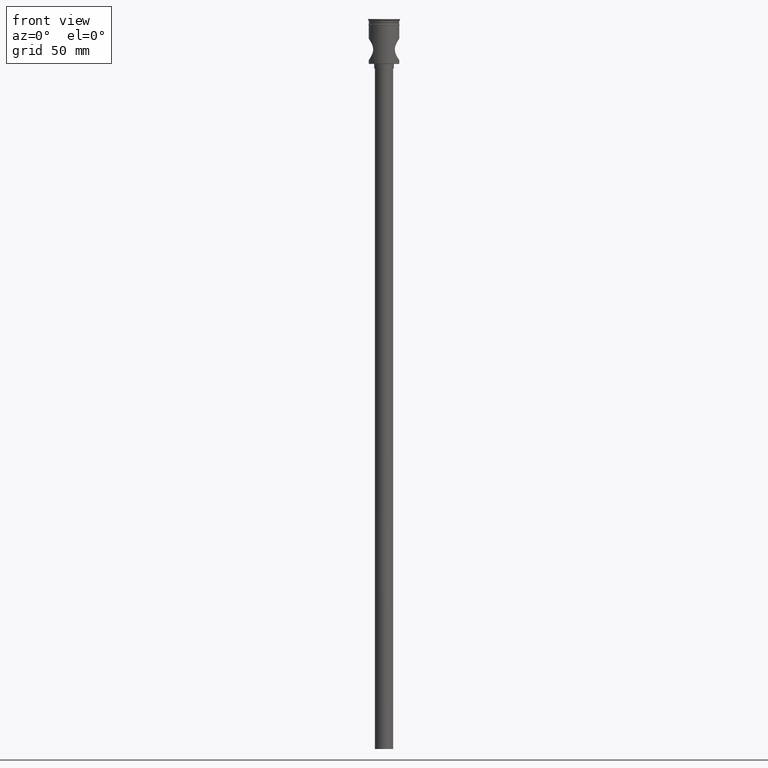
[diagram: clean part render]
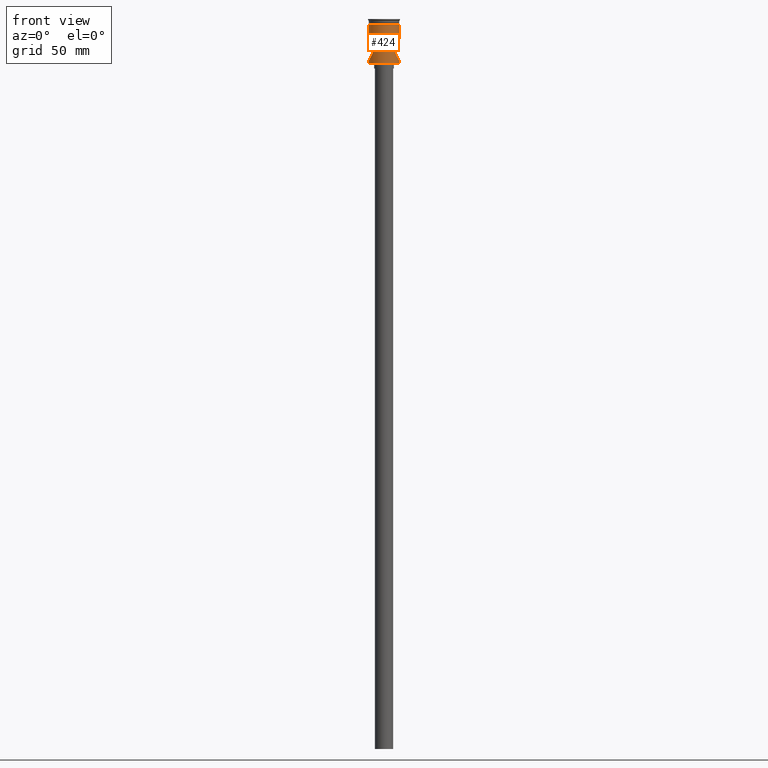
[diagram: same view with one face highlighted and labeled with its STEP entity id]
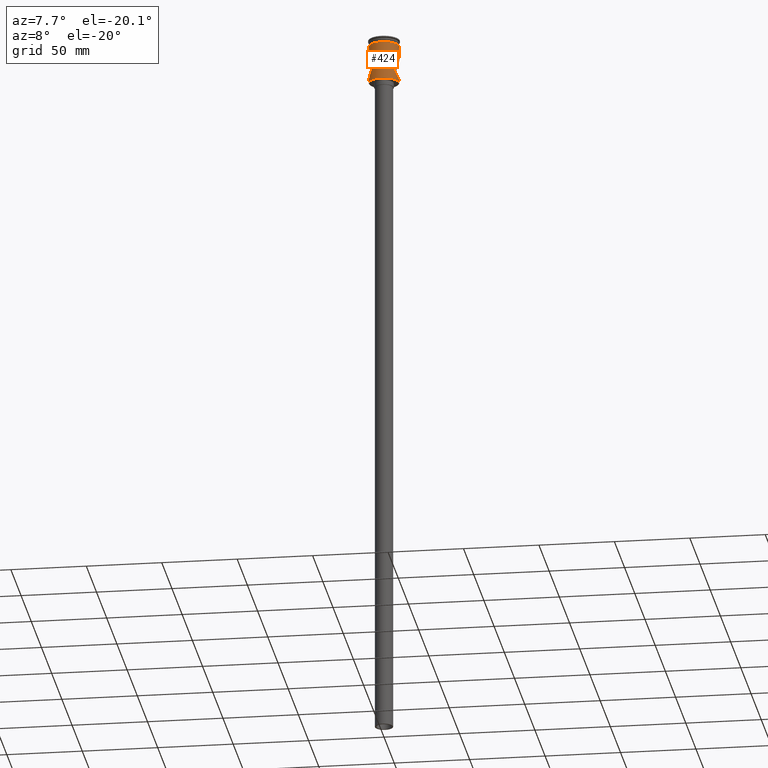
[diagram: same view with one face highlighted and labeled with its STEP entity id]
A machine part, front view. The second image highlights one B-rep face of the part: STEP entity #424.
A second angle (auxiliary view) of the same face is appended — the face is thin or edge-on in the first view.
In plain terms, the highlighted cylindrical surface (edge-blend (fillet) strip) has radius 10 mm, axis along (-0, -0, 1).
Its self-contained STEP definition (entity closure, byte-faithful):
#2 = CARTESIAN_POINT ( 'NONE',  ( -9.965446655919851793, -0.9519641332654177335, -26.95088558220736275 ) ) ;
#10 = CIRCLE ( 'NONE', #1013, 9.999999999999994671 ) ;
#26 = CARTESIAN_POINT ( 'NONE',  ( 7.569330506494650557, -6.535933251526300225, -17.48356472559869701 ) ) ;
#32 = CARTESIAN_POINT ( 'NONE',  ( 9.999999999999996447, -0.4807969081117849930, -27.00000000000000711 ) ) ;
#41 = CARTESIAN_POINT ( 'NONE',  ( 7.500597748671954612, -6.614342876288897166, -17.69704926583546722 ) ) ;
#46 = DIRECTION ( 'NONE',  ( -0.000000000000000000, -0.000000000000000000, 1.000000000000000000 ) ) ;
#57 = CARTESIAN_POINT ( 'NONE',  ( 7.191763660842745765, -6.949507115151161152, -20.96152780032075569 ) ) ;
#60 = CARTESIAN_POINT ( 'NONE',  ( 0.000000000000000000, 0.000000000000000000, -3.999999999999996447 ) ) ;
#65 = CARTESIAN_POINT ( 'NONE',  ( 9.351609315107900500, -3.564938189428362492, -26.04074502495871357 ) ) ;
#80 = CARTESIAN_POINT ( 'NONE',  ( -7.720495804876727597, -6.356685689900114511, -17.05985571267803991 ) ) ;
#88 = CARTESIAN_POINT ( 'NONE',  ( 9.035512705743391493, -4.303590503429355785, -25.53881697926559369 ) ) ;
#90 = CARTESIAN_POINT ( 'NONE',  ( -7.964400624432382614, -6.054727537725130837, -23.54044438658495153 ) ) ;
#93 = CARTESIAN_POINT ( 'NONE',  ( 9.999999999999994671, 0.000000000000000000, -27.00000000000001066 ) ) ;
#103 = CARTESIAN_POINT ( 'NONE',  ( -7.141483849871206324, -6.999943458932624374, -20.23958506209359243 ) ) ;
#138 = CARTESIAN_POINT ( 'NONE',  ( 9.494221684495640190, -3.170672659151725803, -26.25765240908376441 ) ) ;
#141 = CARTESIAN_POINT ( 'NONE',  ( 9.736384942666981956, -2.323699784143519409, -13.38067151163704516 ) ) ;
#161 = CARTESIAN_POINT ( 'NONE',  ( 7.326263957022343121, -6.806624336356016158, -21.65073055260621260 ) ) ;
#165 = ORIENTED_EDGE ( 'NONE', *, *, #403, .T. ) ;
#169 = CARTESIAN_POINT ( 'NONE',  ( 9.832878540591767802, -1.879722866531851500, -13.24054240779418912 ) ) ;
#182 = DIRECTION ( 'NONE',  ( -0.000000000000000000, -0.000000000000000000, 1.000000000000000000 ) ) ;
#201 = EDGE_LOOP ( 'NONE', ( #466, #1478, #165, #1352, #775, #1147, #634, #1414 ) ) ;
#213 = CARTESIAN_POINT ( 'NONE',  ( -9.267396788860443380, -3.762388530127550812, -14.09286872329777296 ) ) ;
#219 = CARTESIAN_POINT ( 'NONE',  ( -9.957729828106902659, -0.9487746701410776362, -13.06049825370512885 ) ) ;
#222 = CARTESIAN_POINT ( 'NONE',  ( -10.00000000000000000, 1.224646799147353256E-15, -3.999999999999996447 ) ) ;
#227 = CARTESIAN_POINT ( 'NONE',  ( -7.379165411094855465, -6.749558967525724817, -21.87002777218120286 ) ) ;
#228 = VECTOR ( 'NONE', #182, 1000.000000000000000 ) ;
#236 = CARTESIAN_POINT ( 'NONE',  ( -9.493823586986472662, -3.171854784083766532, -26.25704949909892605 ) ) ;
#241 = CARTESIAN_POINT ( 'NONE',  ( -9.999999999999994671, 1.224646799147352665E-15, 0.000000000000000000 ) ) ;
#256 = CARTESIAN_POINT ( 'NONE',  ( 9.028965068475372391, -4.317457269925927044, -14.47181101200376219 ) ) ;
#270 = CARTESIAN_POINT ( 'NONE',  ( 7.189382404875344967, -6.951946978929631982, -19.05590796920065344 ) ) ;
#297 = CARTESIAN_POINT ( 'NONE',  ( 9.999999999999996447, -0.2368473339933005184, -13.00000000000000178 ) ) ;
#309 = CARTESIAN_POINT ( 'NONE',  ( -7.325106434378655607, -6.807865243658027588, -21.64544578927128882 ) ) ;
#327 = CARTESIAN_POINT ( 'NONE',  ( -7.573222039985393117, -6.531435267832767622, -22.52812481744789608 ) ) ;
#329 = CARTESIAN_POINT ( 'NONE',  ( 9.999999999999994671, -5.133226810943367768E-18, -13.00000000000000355 ) ) ;
#341 = CARTESIAN_POINT ( 'NONE',  ( -7.967226261725709691, -6.044961550507585990, -16.46329765270407464 ) ) ;
#344 = VECTOR ( 'NONE', #1453, 1000.000000000000000 ) ;
#353 = CARTESIAN_POINT ( 'NONE',  ( -8.856372138511659386, -4.657577678256725306, -25.24421500772974625 ) ) ;
#358 = EDGE_CURVE ( 'NONE', #464, #1266, #1117, .T. ) ;
#364 = EDGE_CURVE ( 'NONE', #1179, #1266, #414, .T. ) ;
#366 = CARTESIAN_POINT ( 'NONE',  ( -9.999999999999998224, -0.4814323775651352944, -27.00000000000000711 ) ) ;
#379 = CARTESIAN_POINT ( 'NONE',  ( 7.796802139286404199, -6.263237125868980293, -16.86600156342441181 ) ) ;
#384 = VERTEX_POINT ( 'NONE', #1243 ) ;
#386 = CARTESIAN_POINT ( 'NONE',  ( 7.322655419112947150, -6.810500286563441641, -18.36528137380276249 ) ) ;
#389 = DIRECTION ( 'NONE',  ( -0.000000000000000000, -0.000000000000000000, 1.000000000000000000 ) ) ;
#398 = CARTESIAN_POINT ( 'NONE',  ( 0.000000000000000000, 0.000000000000000000, 0.000000000000000000 ) ) ;
#403 = EDGE_CURVE ( 'NONE', #678, #726, #627, .T. ) ;
#414 = CIRCLE ( 'NONE', #637, 9.999999999999998224 ) ;
#424 = ADVANCED_FACE ( 'NONE', ( #645 ), #1092, .T. ) ;
#429 = CARTESIAN_POINT ( 'NONE',  ( -9.832512437962641627, -1.881659858244549621, -13.24107387809922720 ) ) ;
#434 = CARTESIAN_POINT ( 'NONE',  ( 9.999999999999994671, 0.000000000000000000, -29.29999999999994387 ) ) ;
#439 = CARTESIAN_POINT ( 'NONE',  ( -7.236111701560243858, -6.902383710959965057, -21.18811620976742915 ) ) ;
#458 = CARTESIAN_POINT ( 'NONE',  ( -9.029975738911995009, -4.315133941133940887, -14.47019995321800501 ) ) ;
#464 = VERTEX_POINT ( 'NONE', #329 ) ;
#465 = CARTESIAN_POINT ( 'NONE',  ( -8.053311715077983379, -5.930176009131116643, -16.27420902905398847 ) ) ;
#466 = ORIENTED_EDGE ( 'NONE', *, *, #1343, .F. ) ;
#484 = CARTESIAN_POINT ( 'NONE',  ( 9.965325511264428116, -0.9525671816038108197, -26.95070955909274346 ) ) ;
#495 = CARTESIAN_POINT ( 'NONE',  ( 9.999999999999994671, 0.000000000000000000, -27.00000000000001066 ) ) ;
#502 = CARTESIAN_POINT ( 'NONE',  ( 7.377383315084116155, -6.751497144694275754, -18.13709901651008494 ) ) ;
#526 = CARTESIAN_POINT ( 'NONE',  ( 8.056358060451358938, -5.926078000082590336, -23.73242365119358865 ) ) ;
#533 = VECTOR ( 'NONE', #1109, 1000.000000000000000 ) ;
#545 = CARTESIAN_POINT ( 'NONE',  ( -7.199668910925415055, -6.940164191266632976, -19.05657392165621999 ) ) ;
#598 = CARTESIAN_POINT ( 'NONE',  ( 9.492393824703038163, -3.176669941205827907, -13.74509325342724075 ) ) ;
#606 = CARTESIAN_POINT ( 'NONE',  ( 9.932287513067294071, -1.185065133237713564, -13.09699146176596152 ) ) ;
#620 = DIRECTION ( 'NONE',  ( -0.000000000000000000, -0.000000000000000000, 1.000000000000000000 ) ) ;
#625 = CARTESIAN_POINT ( 'NONE',  ( 7.381411116935109540, -6.747102913955163039, -21.87877048370861033 ) ) ;
#627 = LINE ( 'NONE', #1105, #228 ) ;
#633 = CARTESIAN_POINT ( 'NONE',  ( 7.802583678074496376, -6.256037095215745580, -23.14831442975813758 ) ) ;
#634 = ORIENTED_EDGE ( 'NONE', *, *, #1060, .F. ) ;
#637 = AXIS2_PLACEMENT_3D ( 'NONE', #60, #620, #996 ) ;
#642 = CARTESIAN_POINT ( 'NONE',  ( -9.999999999999994671, 1.224646799147352665E-15, 0.000000000000000000 ) ) ;
#644 = VERTEX_POINT ( 'NONE', #1285 ) ;
#645 = FACE_OUTER_BOUND ( 'NONE', #201, .T. ) ;
#653 = CARTESIAN_POINT ( 'NONE',  ( 9.991596185262174856, -0.4736682493084634071, -13.01198930438257939 ) ) ;
#678 = VERTEX_POINT ( 'NONE', #434 ) ;
#680 = CARTESIAN_POINT ( 'NONE',  ( -7.153700441637877994, -6.987541224765999814, -20.48080140017840378 ) ) ;
#687 = CARTESIAN_POINT ( 'NONE',  ( -7.503273641266416050, -6.611317046147628496, -22.31171733569519944 ) ) ;
#708 = CARTESIAN_POINT ( 'NONE',  ( -9.349377247001186220, -3.571280898155816619, -26.03738208151085942 ) ) ;
#726 = VERTEX_POINT ( 'NONE', #93 ) ;
#730 = LINE ( 'NONE', #642, #533 ) ;
#738 = CARTESIAN_POINT ( 'NONE',  ( 7.717429328536873356, -6.360383034377455225, -17.06803860621226221 ) ) ;
#748 = CARTESIAN_POINT ( 'NONE',  ( 7.140877080678153632, -7.000562488098498903, -19.52635574343557678 ) ) ;
#750 = CARTESIAN_POINT ( 'NONE',  ( 9.999999999999994671, 0.000000000000000000, 0.000000000000000000 ) ) ;
#764 = VECTOR ( 'NONE', #389, 1000.000000000000000 ) ;
#775 = ORIENTED_EDGE ( 'NONE', *, *, #358, .T. ) ;
#781 = CARTESIAN_POINT ( 'NONE',  ( 9.957864273581442660, -0.9472565907286202291, -13.06030547907275619 ) ) ;
#802 = CARTESIAN_POINT ( 'NONE',  ( -7.495754172928653425, -6.623269820279322317, -17.68917710553389711 ) ) ;
#813 = CARTESIAN_POINT ( 'NONE',  ( -9.834047061028449832, -1.872933838790286742, -26.76115115372198616 ) ) ;
#820 = CARTESIAN_POINT ( 'NONE',  ( -9.553141715981869453, -2.964211287661886907, -13.65436461758241826 ) ) ;
#848 = B_SPLINE_CURVE_WITH_KNOTS ( 'NONE', 3,
 ( #1388, #297, #653, #781, #606, #169, #141, #598, #1205, #256, #974, #857, #1095, #1454, #1080, #379, #738, #26, #41, #502, #386, #270, #748, #1222, #57, #161, #625, #1104, #985, #1229, #633, #896, #526, #1121, #1487, #1263, #88, #65, #138, #1342, #1325, #1077, #947, #484, #32, #495 ),
 .UNSPECIFIED., .F., .F.,
 ( 4, 2, 2, 2, 2, 2, 2, 2, 2, 2, 2, 2, 2, 2, 2, 2, 2, 2, 2, 2, 2, 2, 4 ),
 ( 0.02273717132267115415, 0.02344677004960173464, 0.02415636877653231512, 0.02557556623039347263, 0.02699476368425463360, 0.02841396113811579111, 0.02983315859197695208, 0.03054275731890752910, 0.03125235604583810611, 0.03196195477276868313, 0.03267155349969926015, 0.03409075095356042112, 0.03550994840742158210, 0.03621954713435215911, 0.03692914586128273613, 0.03763874458821332009, 0.03834834331514389710, 0.03976754076900505808, 0.04118673822286621211, 0.04260593567672736615, 0.04331553440365794316, 0.04402513313058852018, 0.04544433058444967422 ),
 .UNSPECIFIED. ) ;
#857 = CARTESIAN_POINT ( 'NONE',  ( 8.497179343882919511, -5.284524261307589121, -15.38819392766633065 ) ) ;
#896 = CARTESIAN_POINT ( 'NONE',  ( 7.969012120586810966, -6.042611853496006269, -23.54072391938827025 ) ) ;
#897 = CARTESIAN_POINT ( 'NONE',  ( -9.999999999999994671, 1.229780025839397734E-15, -13.00000000000000355 ) ) ;
#905 = CARTESIAN_POINT ( 'NONE',  ( -9.999999999999992895, -0.2371603752032593604, -12.99999999999999822 ) ) ;
#907 = LINE ( 'NONE', #241, #344 ) ;
#925 = CARTESIAN_POINT ( 'NONE',  ( -9.999999999999994671, 1.229780025839397734E-15, -13.00000000000000355 ) ) ;
#934 = CARTESIAN_POINT ( 'NONE',  ( -7.234464554488559962, -6.904114004842420549, -18.82145945963318567 ) ) ;
#947 = CARTESIAN_POINT ( 'NONE',  ( 9.867116120145132285, -1.641278058953922203, -26.80890176429205596 ) ) ;
#969 = DIRECTION ( 'NONE',  ( -0.000000000000000000, -0.000000000000000000, 1.000000000000000000 ) ) ;
#974 = CARTESIAN_POINT ( 'NONE',  ( 8.853430568094129427, -4.663155653245506294, -14.76073180007296415 ) ) ;
#979 = EDGE_CURVE ( 'NONE', #384, #678, #10, .T. ) ;
#980 = DIRECTION ( 'NONE',  ( -1.000000000000000000, 0.000000000000000000, 0.000000000000000000 ) ) ;
#985 = CARTESIAN_POINT ( 'NONE',  ( 7.574535355013245486, -6.529908853628298537, -22.53201108648861961 ) ) ;
#996 = DIRECTION ( 'NONE',  ( 1.000000000000000000, 0.000000000000000000, 0.000000000000000000 ) ) ;
#1003 = B_SPLINE_CURVE_WITH_KNOTS ( 'NONE', 3,
 ( #1167, #366, #2, #813, #1417, #236, #708, #1289, #353, #1166, #1406, #90, #1035, #327, #687, #227, #309, #439, #1504, #680, #103, #1303, #1019, #545, #934, #1394, #802, #80, #1422, #341, #465, #1286, #1045, #1027, #458, #213, #1495, #1527, #820, #1158, #429, #1514, #219, #1164, #905, #925 ),
 .UNSPECIFIED., .F., .F.,
 ( 4, 2, 2, 2, 2, 2, 2, 2, 2, 2, 2, 2, 2, 2, 2, 2, 2, 2, 2, 2, 2, 2, 4 ),
 ( 0.000000000000000000, 0.001421073207666954290, 0.002842146415333908580, 0.004263219623000863087, 0.005684292830667816293, 0.007105366038334770366, 0.008526439246001722705, 0.009236975849835196706, 0.009947512453668670707, 0.01065804905750214297, 0.01136858566133561697, 0.01207912226516908924, 0.01278965886900256151, 0.01421073207666950777, 0.01492126868050297657, 0.01563180528433644884, 0.01705287849200338296, 0.01847395169967032055, 0.01918448830350378762, 0.01989502490733725468, 0.02131609811500418880, 0.02202663471883765586, 0.02273717132267112292 ),
 .UNSPECIFIED. ) ;
#1013 = AXIS2_PLACEMENT_3D ( 'NONE', #1118, #46, #980 ) ;
#1019 = CARTESIAN_POINT ( 'NONE',  ( -7.153235015771535643, -6.988014041043822289, -19.52714534028609350 ) ) ;
#1027 = CARTESIAN_POINT ( 'NONE',  ( -8.857763224790602408, -4.655166966848104160, -14.75332674821394185 ) ) ;
#1035 = CARTESIAN_POINT ( 'NONE',  ( -7.796463043157197959, -6.266459839169562507, -23.15209899686185580 ) ) ;
#1045 = CARTESIAN_POINT ( 'NONE',  ( -8.498707828545159160, -5.282283036785493380, -15.38527946463392659 ) ) ;
#1060 = EDGE_CURVE ( 'NONE', #1209, #1179, #907, .T. ) ;
#1077 = CARTESIAN_POINT ( 'NONE',  ( 9.826638545464751573, -1.868062541291061418, -26.75021854738501403 ) ) ;
#1080 = CARTESIAN_POINT ( 'NONE',  ( 7.963207023572480558, -6.050255927956311730, -16.47232531239752618 ) ) ;
#1092 = CYLINDRICAL_SURFACE ( 'NONE', #1140, 9.999999999999994671 ) ;
#1095 = CARTESIAN_POINT ( 'NONE',  ( 8.315544161946235135, -5.562748588078726186, -15.72768175892419151 ) ) ;
#1104 = CARTESIAN_POINT ( 'NONE',  ( 7.505468983612138878, -6.608824641700789648, -22.31875249157932117 ) ) ;
#1105 = CARTESIAN_POINT ( 'NONE',  ( 9.999999999999994671, 0.000000000000000000, 0.000000000000000000 ) ) ;
#1106 = EDGE_CURVE ( 'NONE', #464, #726, #848, .T. ) ;
#1109 = DIRECTION ( 'NONE',  ( -0.000000000000000000, -0.000000000000000000, 1.000000000000000000 ) ) ;
#1117 = LINE ( 'NONE', #750, #764 ) ;
#1118 = CARTESIAN_POINT ( 'NONE',  ( 0.000000000000000000, 0.000000000000000000, -29.29999999999994387 ) ) ;
#1121 = CARTESIAN_POINT ( 'NONE',  ( 8.322069302564294446, -5.553051878775055350, -24.28499264081531805 ) ) ;
#1124 = DIRECTION ( 'NONE',  ( 1.000000000000000000, 0.000000000000000000, 0.000000000000000000 ) ) ;
#1140 = AXIS2_PLACEMENT_3D ( 'NONE', #398, #969, #1124 ) ;
#1147 = ORIENTED_EDGE ( 'NONE', *, *, #364, .F. ) ;
#1158 = CARTESIAN_POINT ( 'NONE',  ( -9.735967975428483356, -2.325336189795351949, -13.38128717480536167 ) ) ;
#1164 = CARTESIAN_POINT ( 'NONE',  ( -9.991574020215788110, -0.4743472386555552256, -13.01202085301403244 ) ) ;
#1166 = CARTESIAN_POINT ( 'NONE',  ( -8.500359578522523663, -5.279417043634754947, -24.61763755135370957 ) ) ;
#1167 = CARTESIAN_POINT ( 'NONE',  ( -9.999999999999996447, 0.000000000000000000, -27.00000000000000355 ) ) ;
#1179 = VERTEX_POINT ( 'NONE', #222 ) ;
#1182 = EDGE_CURVE ( 'NONE', #644, #1209, #1003, .T. ) ;
#1205 = CARTESIAN_POINT ( 'NONE',  ( 9.347318963212909892, -3.576349491498993505, -13.96584429441085717 ) ) ;
#1209 = VERTEX_POINT ( 'NONE', #897 ) ;
#1222 = CARTESIAN_POINT ( 'NONE',  ( 7.141989287018506438, -6.999427809131204548, -20.49012689816928301 ) ) ;
#1229 = CARTESIAN_POINT ( 'NONE',  ( 7.723089038241833570, -6.353518016691835690, -22.94679462982523077 ) ) ;
#1243 = CARTESIAN_POINT ( 'NONE',  ( -9.999999999999994671, 1.224646799147352665E-15, -29.29999999999994387 ) ) ;
#1263 = CARTESIAN_POINT ( 'NONE',  ( 8.860185483737918588, -4.650373212660213085, -25.25064384002004303 ) ) ;
#1266 = VERTEX_POINT ( 'NONE', #1451 ) ;
#1285 = CARTESIAN_POINT ( 'NONE',  ( -9.999999999999996447, 0.000000000000000000, -27.00000000000000355 ) ) ;
#1286 = CARTESIAN_POINT ( 'NONE',  ( -8.316470757484857756, -5.561257273121389844, -15.72607428983809008 ) ) ;
#1289 = CARTESIAN_POINT ( 'NONE',  ( -9.029024665842506181, -4.317593744654968368, -25.52832831042054451 ) ) ;
#1303 = CARTESIAN_POINT ( 'NONE',  ( -7.141373392009655596, -7.000056148497765030, -19.76373034873125434 ) ) ;
#1325 = CARTESIAN_POINT ( 'NONE',  ( 9.730782946235684960, -2.316105786581691195, -26.60989879506474054 ) ) ;
#1342 = CARTESIAN_POINT ( 'NONE',  ( 9.675488818793544610, -2.536388918100088485, -26.52836702033824778 ) ) ;
#1343 = EDGE_CURVE ( 'NONE', #384, #644, #730, .T. ) ;
#1352 = ORIENTED_EDGE ( 'NONE', *, *, #1106, .F. ) ;
#1388 = CARTESIAN_POINT ( 'NONE',  ( 9.999999999999994671, -5.133226810943367768E-18, -13.00000000000000355 ) ) ;
#1394 = CARTESIAN_POINT ( 'NONE',  ( -7.368839572955796058, -6.761454996973015774, -18.12764364703030395 ) ) ;
#1406 = CARTESIAN_POINT ( 'NONE',  ( -8.315624236750039699, -5.562535070965513029, -24.27231501587448292 ) ) ;
#1414 = ORIENTED_EDGE ( 'NONE', *, *, #1182, .F. ) ;
#1417 = CARTESIAN_POINT ( 'NONE',  ( -9.735585976469913305, -2.326309258653755929, -26.61812786508322759 ) ) ;
#1422 = CARTESIAN_POINT ( 'NONE',  ( -7.801002067758137315, -6.258004569467827238, -16.85560777748650096 ) ) ;
#1451 = CARTESIAN_POINT ( 'NONE',  ( 9.999999999999998224, 0.000000000000000000, -3.999999999999996447 ) ) ;
#1453 = DIRECTION ( 'NONE',  ( -0.000000000000000000, -0.000000000000000000, 1.000000000000000000 ) ) ;
#1454 = CARTESIAN_POINT ( 'NONE',  ( 8.050554706296177088, -5.933943087171876130, -16.28011583648020988 ) ) ;
#1478 = ORIENTED_EDGE ( 'NONE', *, *, #979, .T. ) ;
#1487 = CARTESIAN_POINT ( 'NONE',  ( 8.503943671969897977, -5.273689396165734067, -24.62422230267287304 ) ) ;
#1495 = CARTESIAN_POINT ( 'NONE',  ( -9.343068346694407111, -3.570972421456891865, -13.97506645596566699 ) ) ;
#1504 = CARTESIAN_POINT ( 'NONE',  ( -7.201179731105406212, -6.938600208746064979, -20.95536877560809330 ) ) ;
#1514 = CARTESIAN_POINT ( 'NONE',  ( -9.932071413309429886, -1.186883990593140314, -13.09730212679606964 ) ) ;
#1527 = CARTESIAN_POINT ( 'NONE',  ( -9.485754788391531633, -3.172574074835091462, -13.75608760595409308 ) ) ;